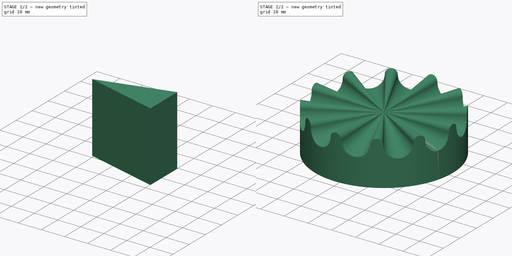
[diagram: build sequence overview — one tinted view per stage of 2, left to right]
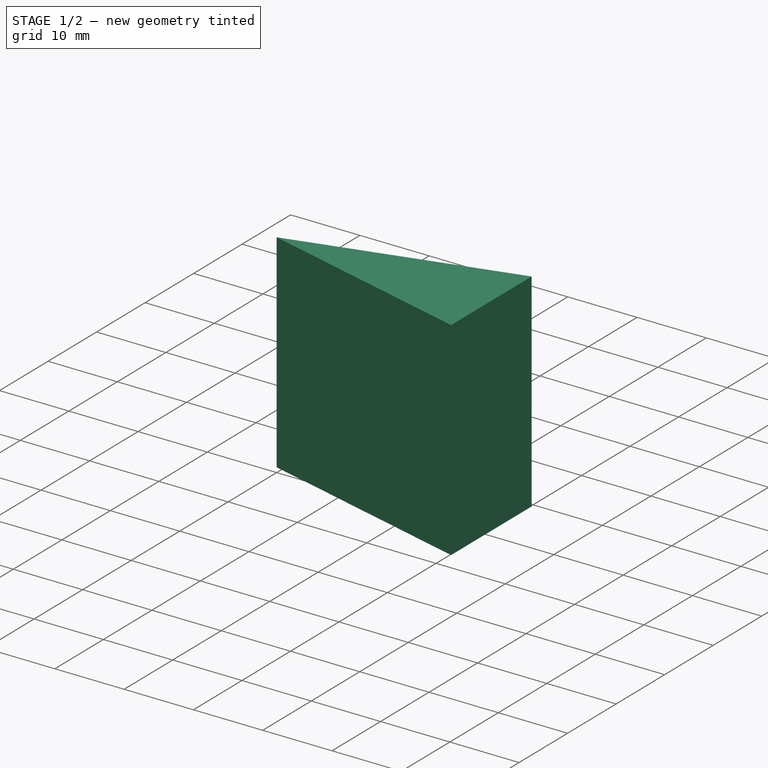
[diagram: stage 1 of 2 — iso view after this stage's code; geometry added in this stage tinted green]
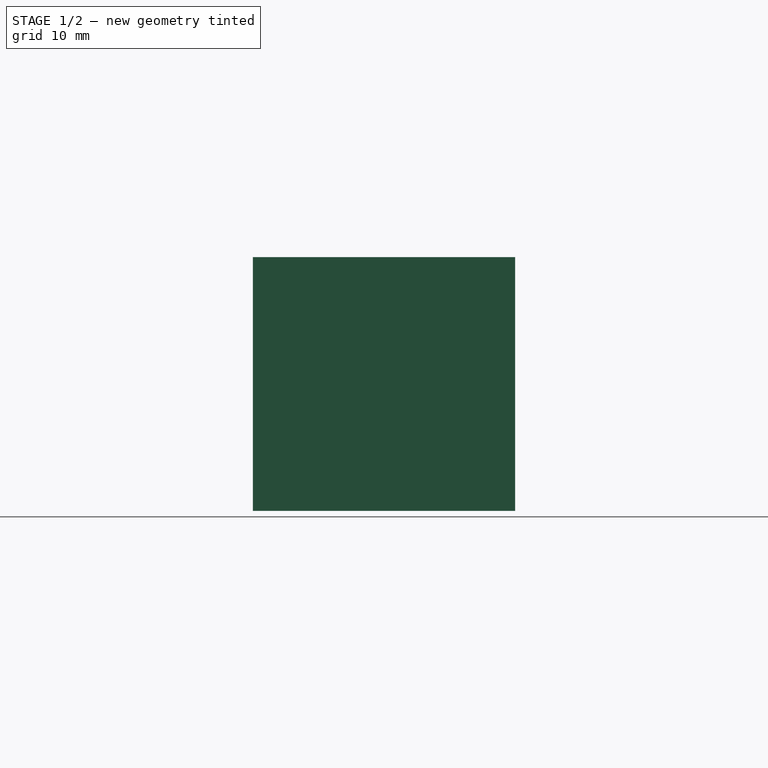
[diagram: stage 1 of 2 — front view after this stage's code; geometry added in this stage tinted green]
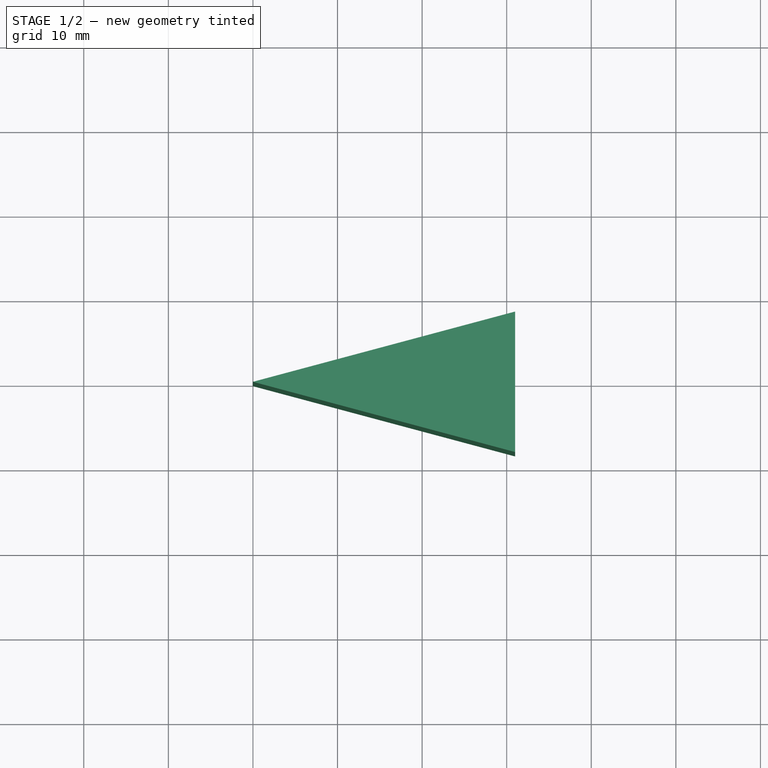
[diagram: stage 1 of 2 — top view after this stage's code; geometry added in this stage tinted green]
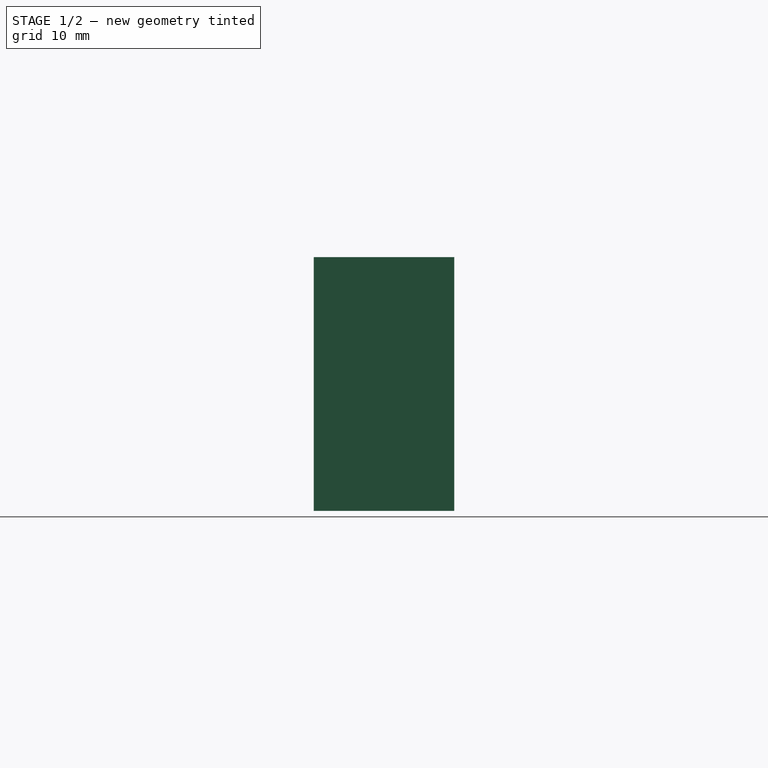
[diagram: stage 1 of 2 — right view after this stage's code; geometry added in this stage tinted green]
FCSTD DOCUMENT  (FreeCAD 0.16R5702 (Git))
Label: crown-cut
License: All rights reserved
LicenseURL: http://en.wikipedia.org/wiki/All_rights_reserved
objects: Sketcher::SketchObject×4, Part::Extrusion×3, Part::FeaturePython×2, Part::Loft×1, Part::Cut×1
note: 11 computed .brp shape members not serialized (recipe doc carries the construction recipe); baked Part::Feature solids carry a one-line shape summary decoded from their .brp

FEATURE [Sketcher::SketchObject] Sketch  label="Sketch-CylinderBase"
  sketch-geometry (1):
    g0: Circle CenterX=0 CenterY=0 CenterZ=0 NormalX=0 NormalY=0 NormalZ=1 Radius=28.9899
  constraints (1):
    c: Coincident(g0,g-1)
FEATURE [Part::Extrusion] Extrude  label="Extrude-Cylinder"
  Base = -> Sketch
  Dir = (0,0,30)
  Solid = true
FEATURE [Sketcher::SketchObject] Sketch001  label="Sketch-PieSector"
  ExternalGeometry = -> [Extrude]
  MapMode = 1
  Placement = pos=(0,0,0) rot=(1,0,0;3.14159rad)
  Support = -> Extrude [Face2]
  sketch-geometry (5):
    g0: LineSegment StartX=0 StartY=0 StartZ=0 EndX=30.9899 EndY=8.30373 EndZ=0
    g1: LineSegment StartX=30.9899 StartY=8.30373 StartZ=0 EndX=30.9899 EndY=-8.30373 EndZ=0
    g2: LineSegment StartX=30.9899 StartY=-8.30373 StartZ=0 EndX=0 EndY=0 EndZ=0
    g3: GeomPoint [constr] X=30.9899 Y=0 Z=0
    g4: GeomPoint [constr] X=28.9899 Y=0 Z=0
  constraints (11):
    c: Coincident(g0,g1)
    c: Coincident(g1,g2)
    c: Coincident(g0,g2)
    c: Coincident(g0,g-1)
    c: Symmetric(g1,g0,g-1)
    c: PointOnObject(g3,g-1)
    c: PointOnObject(g3,g1)
    c: PointOnObject(g4,g-3)
    c: PointOnObject(g4,g-1)
    c: DistanceX(g4,g3) = 2
    c: Angle(g2,g0) = 0.523599
FEATURE [Part::Extrusion] Extrude001  label="Extrude-PieSectorSupportShape"
  Base = -> Sketch001
  Dir = (0,0,30)
  Solid = true
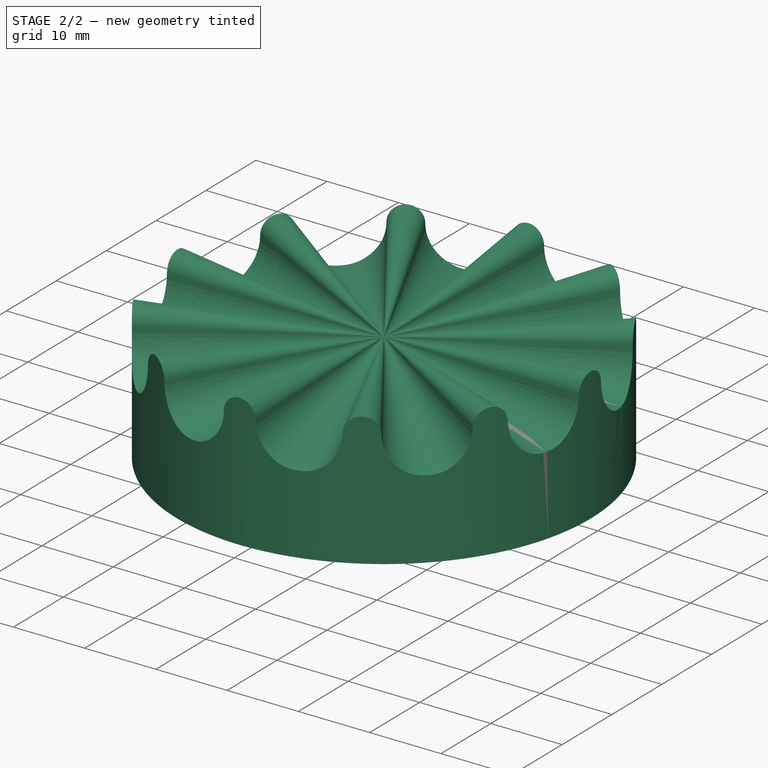
[diagram: stage 2 of 2 — iso view after this stage's code; geometry added in this stage tinted green]
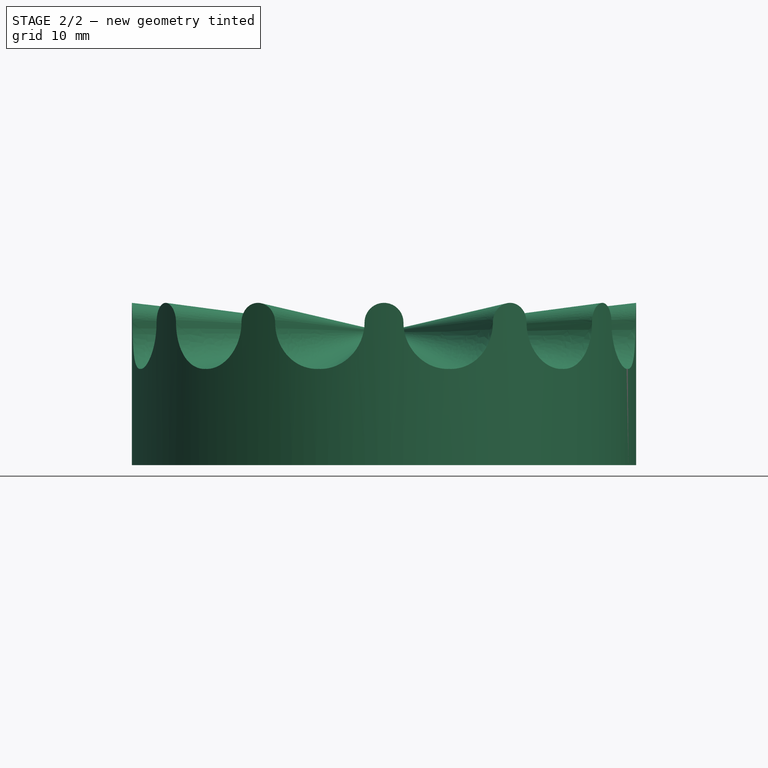
[diagram: stage 2 of 2 — front view after this stage's code; geometry added in this stage tinted green]
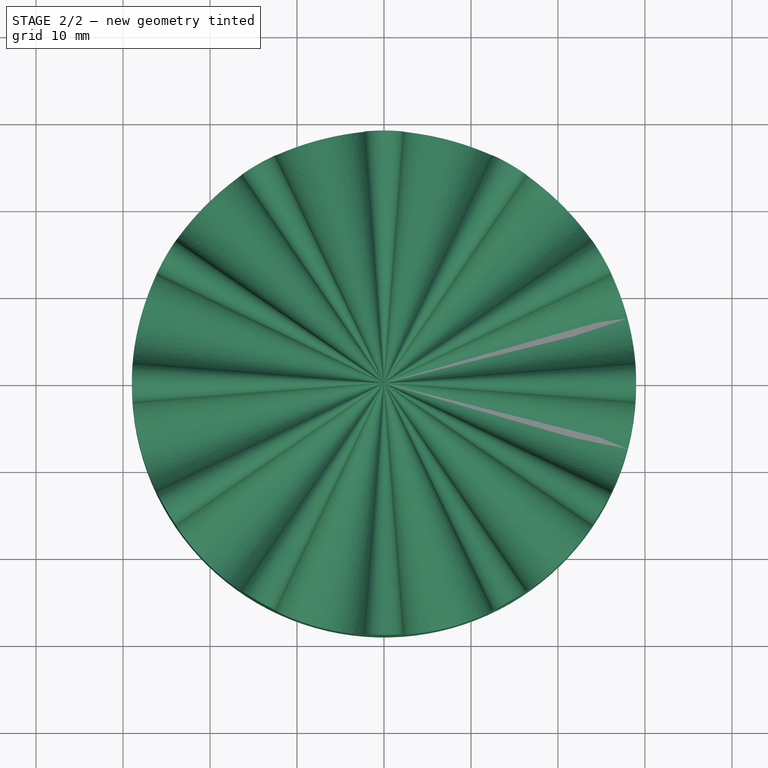
[diagram: stage 2 of 2 — top view after this stage's code; geometry added in this stage tinted green]
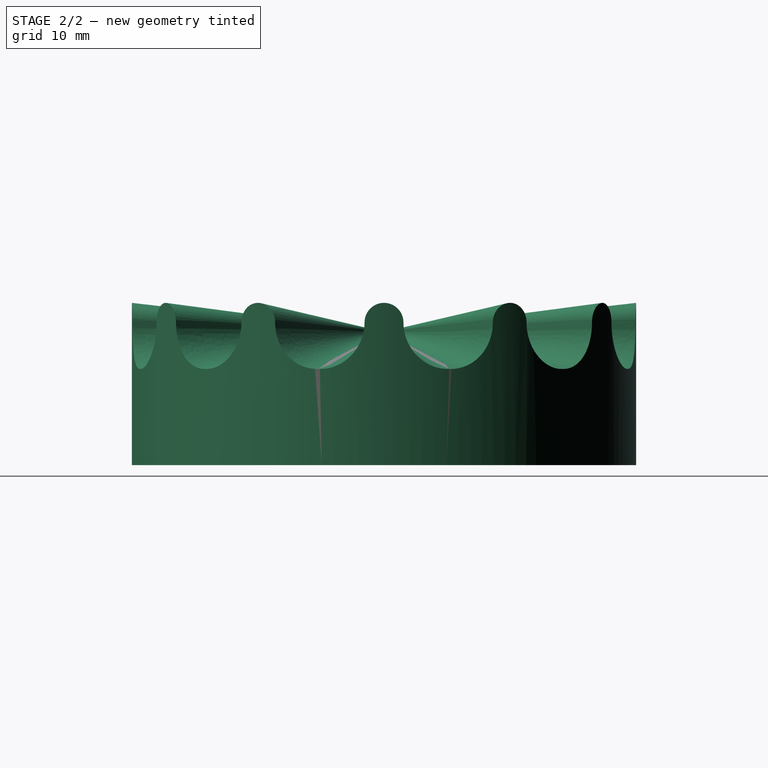
[diagram: stage 2 of 2 — right view after this stage's code; geometry added in this stage tinted green]
FEATURE [Sketcher::SketchObject] Sketch002
  ExternalGeometry = -> [Extrude001]
  MapMode = 1
  Placement = pos=(30.9899,0,0) rot=(0.57735,0.57735,0.57735;2.0944rad)
  Support = -> Extrude001 [Face2]
  sketch-geometry (3):
    g0: ArcOfCircle CenterX=-8.30373 CenterY=16.5163 CenterZ=0 NormalX=0 NormalY=0 NormalZ=1 Radius=5.90697 StartAngle=4.71239 EndAngle=6.28019
    g1: ArcOfCircle CenterX=0 CenterY=16.4914 CenterZ=0 NormalX=0 NormalY=0 NormalZ=1 Radius=2.3968 StartAngle=0.00299758 EndAngle=3.1386
    g2: ArcOfCircle CenterX=8.30373 CenterY=16.5163 CenterZ=0 NormalX=0 NormalY=0 NormalZ=1 Radius=5.90697 StartAngle=3.14459 EndAngle=4.71239
  constraints (6):
    c: Perpendicular(g2,g-4) = 1.5708
    c: PointOnObject(g1,g-2)
    c: Tangent(g1,g2) = 1.5708
    c: Tangent(g0,g1) = 1.5708
    c: Perpendicular(g0,g-3) = 1.5708
    c: DistanceY(g2,g0) = 0
FEATURE [Part::FeaturePython] Array  label="Array-dontForgetToFuse"  # Draft array (typed FeaturePython)
  Angle = 360
  ArrayType = 1
  Axis = (0,0,1)
  Base = -> Sketch002
  Center = (0,0,0)
  Fuse = true
  IntervalAxis = (0,0,0)
  IntervalX = (1,0,0)
  IntervalY = (0,1,0)
  IntervalZ = (0,0,0)
  NumberPolar = 12
  NumberX = 2
  NumberY = 2
  NumberZ = 1
FEATURE [Sketcher::SketchObject] Sketch003  label="Sketch-ForSnappingTheDraftPoint"
  ExternalGeometry = -> [Extrude001]
  MapMode = 1
  Placement = pos=(0,0,0) rot=(0.983106,-0.129428,-0.129428;1.58783rad)
  Support = -> Extrude001 [Face1]
  sketch-geometry (1):
    g0: LineSegment StartX=0 StartY=15.3217 StartZ=0 EndX=9.70818 EndY=15.3217 EndZ=0
  constraints (1):
    c: Perpendicular(g0,g-3) = 1.5708
FEATURE [Part::FeaturePython] Point  label="Point-of-convergence"  # WARN: FeaturePython — macro-defined, semantics opaque (R4)
  X = 0
  Y = 0
  Z = 15.3217
FEATURE [Part::Loft] Loft
  Closed = false
  Ruled = false
  Sections = -> [Array,Point]
  Solid = false
FEATURE [Part::Extrusion] Extrude002  label="Extrude-makeVolumeForCutting"
  Base = -> Loft
  Dir = (0,0,50)
  Solid = false
FEATURE [Part::Cut] Cut
  Base = -> Extrude
  Tool = -> Extrude002
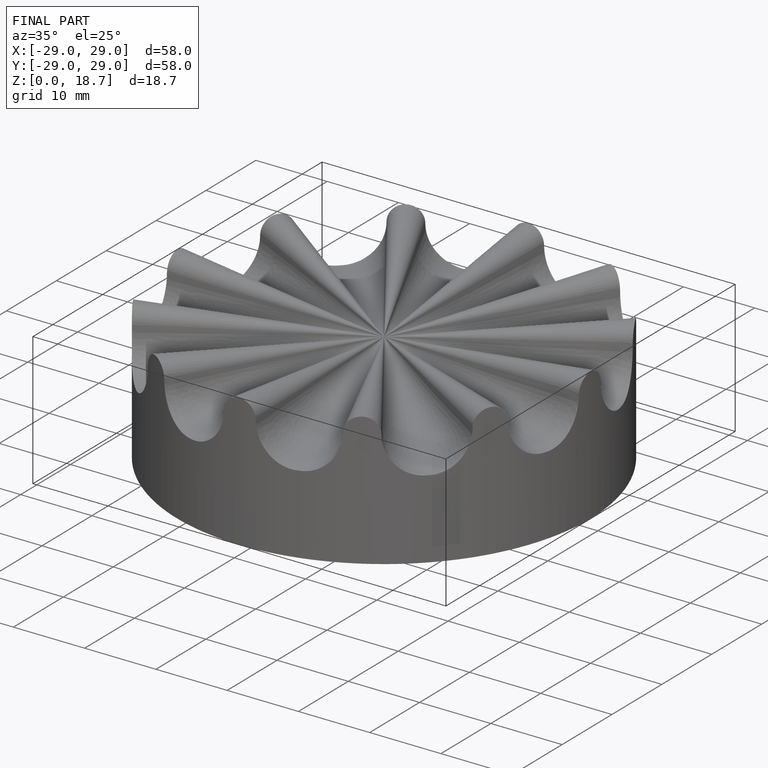
[diagram: finished part — iso view with bounding-box wireframe]
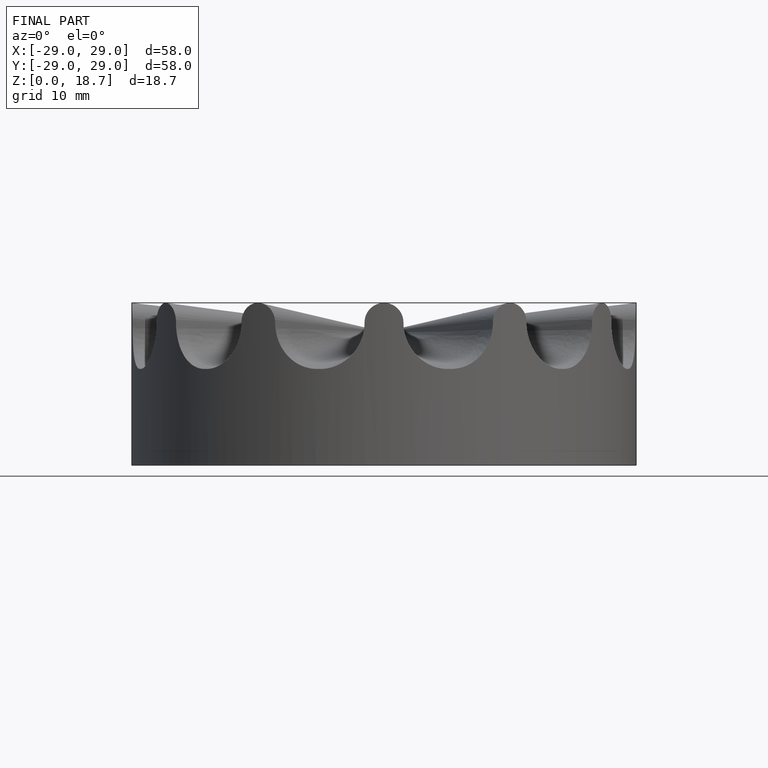
[diagram: finished part — front view with bounding-box wireframe]
